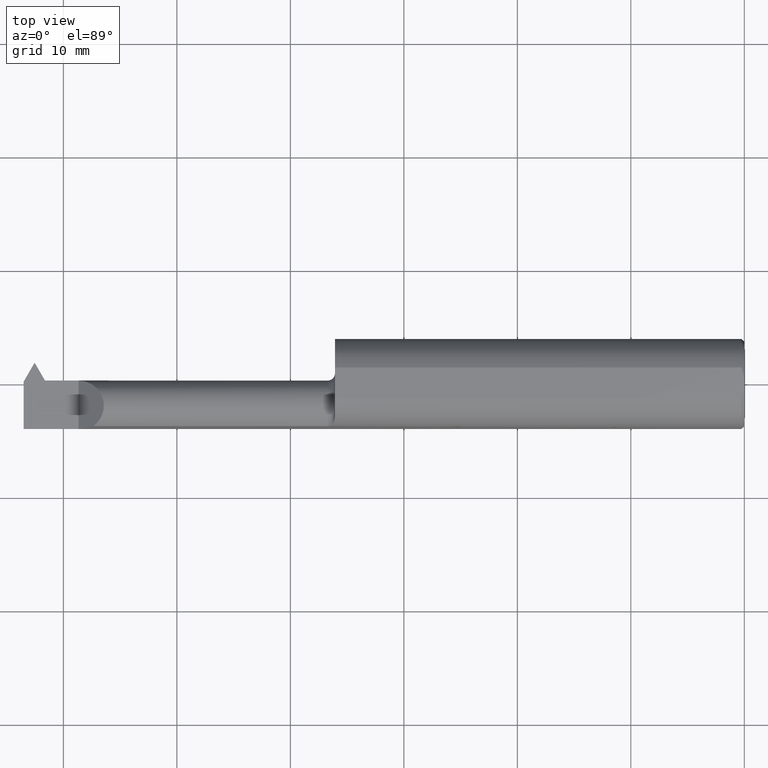
[diagram: clean part render]
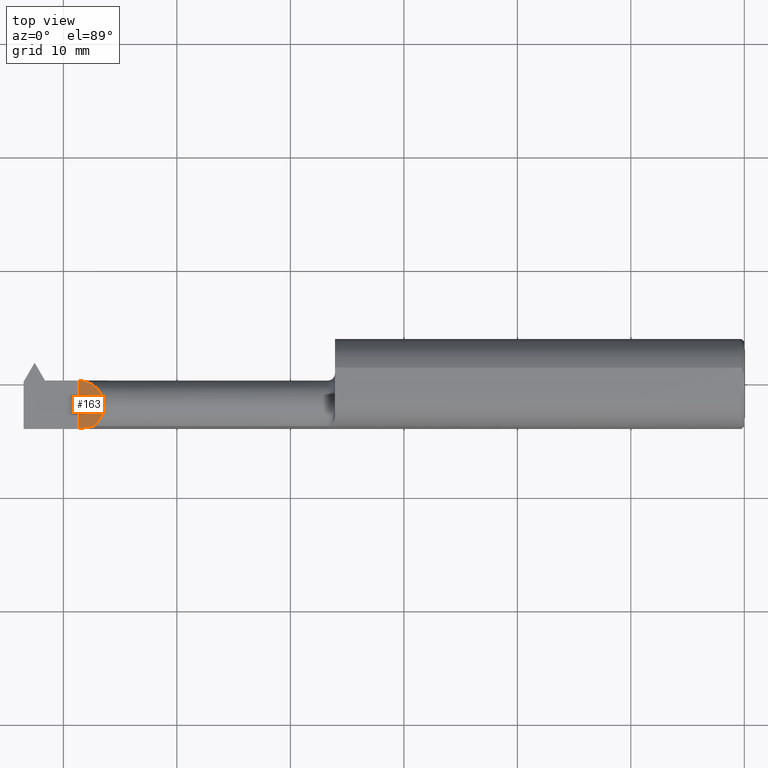
[diagram: same view with one face highlighted and labeled with its STEP entity id]
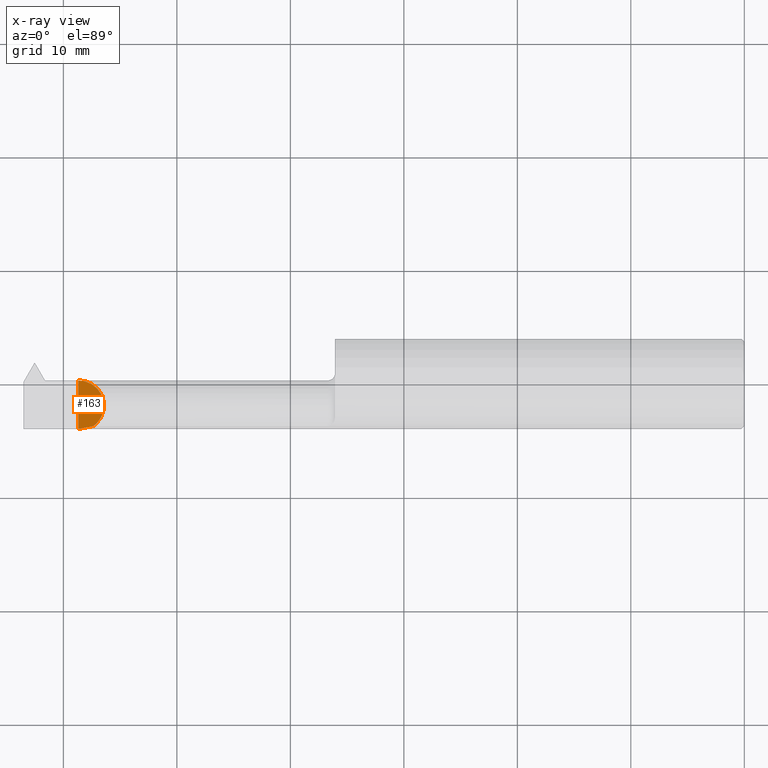
[diagram: x-ray of the same camera — body ghosted, the highlighted face saturated]
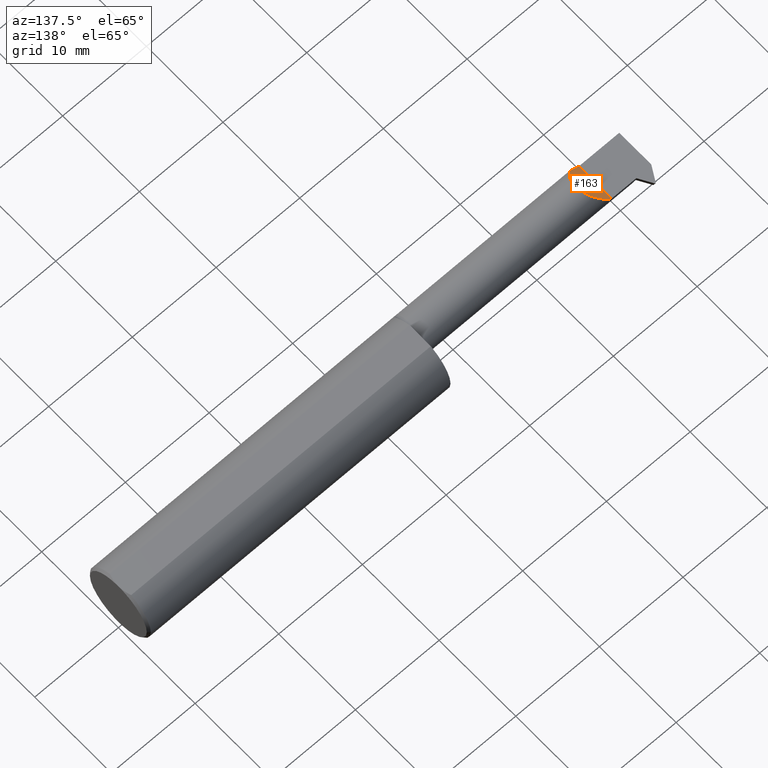
[diagram: same view with one face highlighted and labeled with its STEP entity id]
A machine part, top view. The second image highlights one B-rep face of the part: STEP entity #163.
The next image is the same camera in x-ray: the body ghosted, the highlighted face saturated — about 0% of this face is hidden behind the body in this view.
A second angle (auxiliary view) of the same face is appended — the face is thin or edge-on in the first view.
In plain terms, the highlighted planar face has unit normal (0.7071, 0, -0.7071).
Its self-contained STEP definition (entity closure, byte-faithful):
#10 = VERTEX_POINT ( 'NONE', #260 ) ;
#13 = VERTEX_POINT ( 'NONE', #119 ) ;
#43 = CARTESIAN_POINT ( 'NONE',  ( -2.292330217250612812, -0.1561000000000000443, 0.01766978274938703006 ) ) ;
#59 = EDGE_CURVE ( 'NONE', #10, #435, #288, .T. ) ;
#103 = CARTESIAN_POINT ( 'NONE',  ( -2.258241905890881807, -0.1472695137976346713, 0.05175809410911782343 ) ) ;
#106 = CARTESIAN_POINT ( 'NONE',  ( -2.310000000000000053, -0.2500000000000000000, 0.000000000000000000 ) ) ;
#119 = CARTESIAN_POINT ( 'NONE',  ( -2.310000000000000053, 0.01189999999999987769, 0.000000000000000000 ) ) ;
#131 = DIRECTION ( 'NONE',  ( 0.7071067811865437980, 0.000000000000000000, -0.7071067811865513475 ) ) ;
#146 = CARTESIAN_POINT ( 'NONE',  ( -2.206585760359398130, 0.01189999999999993840, 0.1034142396406013825 ) ) ;
#163 = ADVANCED_FACE ( 'NONE', ( #204 ), #798, .F. ) ;
#203 = CARTESIAN_POINT ( 'NONE',  ( -2.258241905890881807, -0.1472695137976346713, 0.05175809410911782343 ) ) ;
#204 = FACE_OUTER_BOUND ( 'NONE', #638, .T. ) ;
#226 = CARTESIAN_POINT ( 'NONE',  ( -2.174606210947997997, -0.08644537803012208865, 0.1353937890520004461 ) ) ;
#236 = EDGE_CURVE ( 'NONE', #13, #435, #383, .T. ) ;
#239 = LINE ( 'NONE', #106, #850 ) ;
#260 = CARTESIAN_POINT ( 'NONE',  ( -2.310000000000000053, -0.1561000000000000998, 0.000000000000000000 ) ) ;
#288 =( BOUNDED_CURVE ( )  B_SPLINE_CURVE ( 3, ( #396, #43, #626, #203 ),
 .UNSPECIFIED., .F., .T. ) 
 B_SPLINE_CURVE_WITH_KNOTS ( ( 4, 4 ),
 ( 4.712388980384689674, 5.050356325447890704 ),
 .UNSPECIFIED. ) 
 CURVE ( )  GEOMETRIC_REPRESENTATION_ITEM ( )  RATIONAL_B_SPLINE_CURVE ( ( 1.000000000000000000, 0.9905041350217796969, 0.9905041350217796969, 1.000000000000000000 ) ) 
 REPRESENTATION_ITEM ( '' )  );
#324 = ORIENTED_EDGE ( 'NONE', *, *, #422, .F. ) ;
#383 =( BOUNDED_CURVE ( )  B_SPLINE_CURVE ( 3, ( #752, #146, #226, #492 ),
 .UNSPECIFIED., .F., .T. ) 
 B_SPLINE_CURVE_WITH_KNOTS ( ( 4, 4 ),
 ( 1.570796326794896558, 4.083606959790376578 ),
 .UNSPECIFIED. ) 
 CURVE ( )  GEOMETRIC_REPRESENTATION_ITEM ( )  RATIONAL_B_SPLINE_CURVE ( ( 1.000000000000000000, 0.5394915924057046563, 0.5394915924057046563, 1.000000000000000000 ) ) 
 REPRESENTATION_ITEM ( '' )  );
#396 = CARTESIAN_POINT ( 'NONE',  ( -2.310000000000000053, -0.1561000000000000998, 0.000000000000000000 ) ) ;
#422 = EDGE_CURVE ( 'NONE', #10, #13, #239, .T. ) ;
#427 = AXIS2_PLACEMENT_3D ( 'NONE', #673, #131, #736 ) ;
#435 = VERTEX_POINT ( 'NONE', #103 ) ;
#492 = CARTESIAN_POINT ( 'NONE',  ( -2.258241905890881807, -0.1472695137976346713, 0.05175809410911782343 ) ) ;
#626 = CARTESIAN_POINT ( 'NONE',  ( -2.274912119307999969, -0.1531282856005203030, 0.03508788069200007714 ) ) ;
#638 = EDGE_LOOP ( 'NONE', ( #660, #324, #765 ) ) ;
#660 = ORIENTED_EDGE ( 'NONE', *, *, #236, .F. ) ;
#673 = CARTESIAN_POINT ( 'NONE',  ( -2.310000000000000053, -0.2500000000000000000, 0.000000000000000000 ) ) ;
#719 = DIRECTION ( 'NONE',  ( -0.000000000000000000, 1.000000000000000000, -0.000000000000000000 ) ) ;
#736 = DIRECTION ( 'NONE',  ( -0.7071067811865512365, 0.000000000000000000, -0.7071067811865436870 ) ) ;
#752 = CARTESIAN_POINT ( 'NONE',  ( -2.310000000000000053, 0.01189999999999987769, 0.000000000000000000 ) ) ;
#765 = ORIENTED_EDGE ( 'NONE', *, *, #59, .T. ) ;
#798 = PLANE ( 'NONE',  #427 ) ;
#850 = VECTOR ( 'NONE', #719, 39.37007874015748143 ) ;